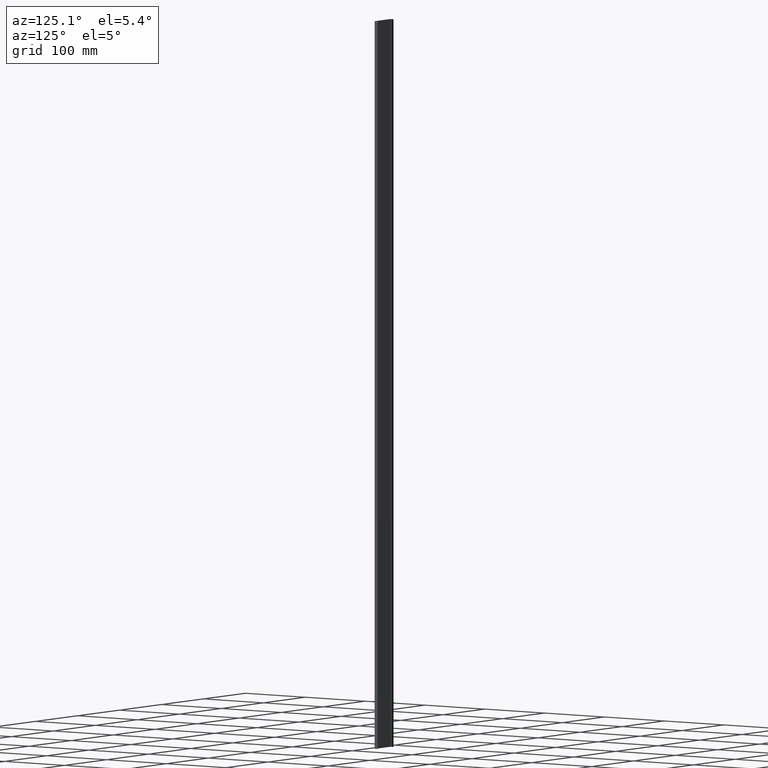
[diagram: clean part render]
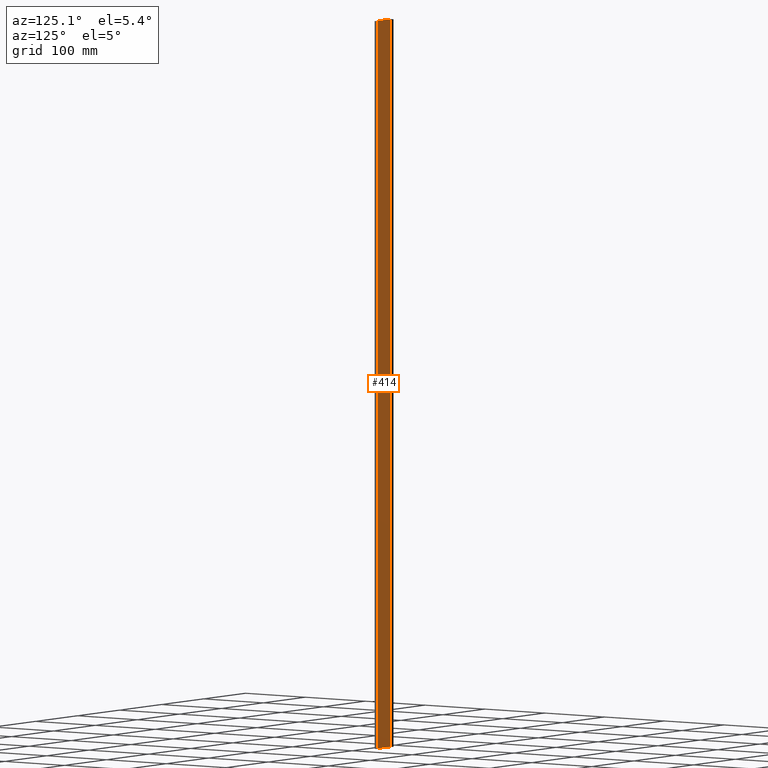
[diagram: same view with one face highlighted and labeled with its STEP entity id]
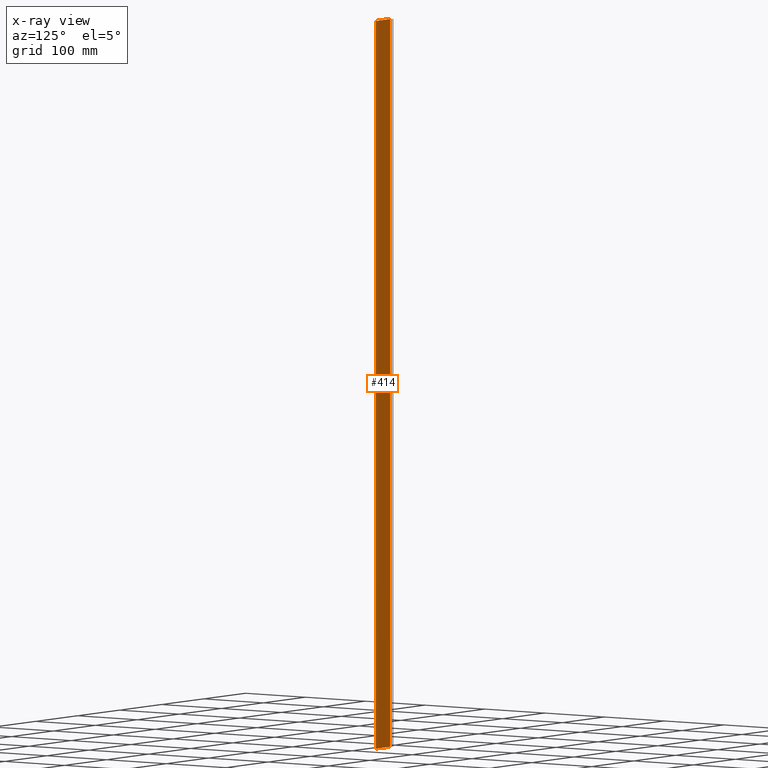
[diagram: x-ray of the same camera — body ghosted, the highlighted face saturated]
A machine part, auxiliary view. The second image highlights one B-rep face of the part: STEP entity #414.
The next image is the same camera in x-ray: the body ghosted, the highlighted face saturated — about 0% of this face is hidden behind the body in this view.
In plain terms, the highlighted planar face has unit normal (0, -1, 0).
Its self-contained STEP definition (entity closure, byte-faithful):
#83 = EDGE_LOOP ( 'NONE', ( #112, #113, #118, #104 ) ) ;
#104 = ORIENTED_EDGE ( 'NONE', *, *, #362, .T. ) ;
#112 = ORIENTED_EDGE ( 'NONE', *, *, #346, .F. ) ;
#113 = ORIENTED_EDGE ( 'NONE', *, *, #358, .T. ) ;
#118 = ORIENTED_EDGE ( 'NONE', *, *, #384, .T. ) ;
#150 = DIRECTION ( 'NONE',  ( 1.239088197126290600E-016, -1.000000000000000000, 0.0000000000000000000 ) ) ;
#153 = DIRECTION ( 'NONE',  ( 1.000000000000000000, 1.239088197126290600E-016, 0.0000000000000000000 ) ) ;
#165 = FACE_OUTER_BOUND ( 'NONE', #83, .T. ) ;
#169 = CARTESIAN_POINT ( 'NONE',  ( 87.93745546312872800, 1.200000000000010800, 1000.000000000000000 ) ) ;
#172 = PLANE ( 'NONE',  #701 ) ;
#201 = CARTESIAN_POINT ( 'NONE',  ( 87.43745546312872800, 1.200000000000010800, 0.0000000000000000000 ) ) ;
#211 = DIRECTION ( 'NONE',  ( 0.0000000000000000000, 0.0000000000000000000, -1.000000000000000000 ) ) ;
#220 = DIRECTION ( 'NONE',  ( -1.000000000000000000, -1.239088197126290600E-016, 0.0000000000000000000 ) ) ;
#236 = LINE ( 'NONE', #201, #648 ) ;
#252 = VERTEX_POINT ( 'NONE', #304 ) ;
#271 = VERTEX_POINT ( 'NONE', #307 ) ;
#281 = VERTEX_POINT ( 'NONE', #340 ) ;
#300 = VERTEX_POINT ( 'NONE', #315 ) ;
#304 = CARTESIAN_POINT ( 'NONE',  ( 53.43745546312872800, 1.200000000000006400, 1000.000000000000000 ) ) ;
#307 = CARTESIAN_POINT ( 'NONE',  ( 53.43745546312872800, 1.200000000000006400, 0.0000000000000000000 ) ) ;
#315 = CARTESIAN_POINT ( 'NONE',  ( 87.43745546312872800, 1.200000000000010800, 1000.000000000000000 ) ) ;
#317 = CARTESIAN_POINT ( 'NONE',  ( 87.93745546312872800, 1.200000000000010800, 1000.000000000000000 ) ) ;
#339 = LINE ( 'NONE', #317, #660 ) ;
#340 = CARTESIAN_POINT ( 'NONE',  ( 87.43745546312872800, 1.200000000000010800, 0.0000000000000000000 ) ) ;
#346 = EDGE_CURVE ( 'NONE', #300, #252, #339, .T. ) ;
#358 = EDGE_CURVE ( 'NONE', #300, #281, #236, .T. ) ;
#362 = EDGE_CURVE ( 'NONE', #271, #252, #537, .T. ) ;
#384 = EDGE_CURVE ( 'NONE', #281, #271, #478, .T. ) ;
#414 = ADVANCED_FACE ( 'NONE', ( #165 ), #172, .F. ) ;
#478 = LINE ( 'NONE', #521, #653 ) ;
#513 = DIRECTION ( 'NONE',  ( -1.000000000000000000, -1.239088197126290600E-016, 0.0000000000000000000 ) ) ;
#521 = CARTESIAN_POINT ( 'NONE',  ( 87.93745546312872800, 1.200000000000010800, 0.0000000000000000000 ) ) ;
#537 = LINE ( 'NONE', #546, #658 ) ;
#546 = CARTESIAN_POINT ( 'NONE',  ( 53.43745546312872800, 1.200000000000006400, 1000.000000000000000 ) ) ;
#547 = DIRECTION ( 'NONE',  ( -0.0000000000000000000, -0.0000000000000000000, 1.000000000000000000 ) ) ;
#648 = VECTOR ( 'NONE', #211, 1000.000000000000000 ) ;
#653 = VECTOR ( 'NONE', #513, 1000.000000000000000 ) ;
#658 = VECTOR ( 'NONE', #547, 1000.000000000000000 ) ;
#660 = VECTOR ( 'NONE', #220, 1000.000000000000000 ) ;
#701 = AXIS2_PLACEMENT_3D ( 'NONE', #169, #150, #153 ) ;